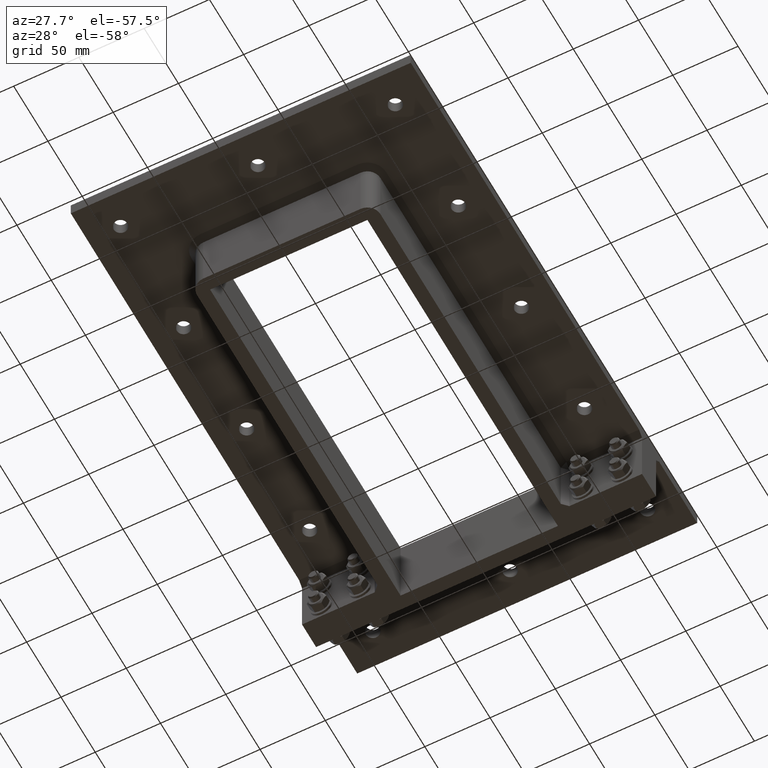
[diagram: clean part render]
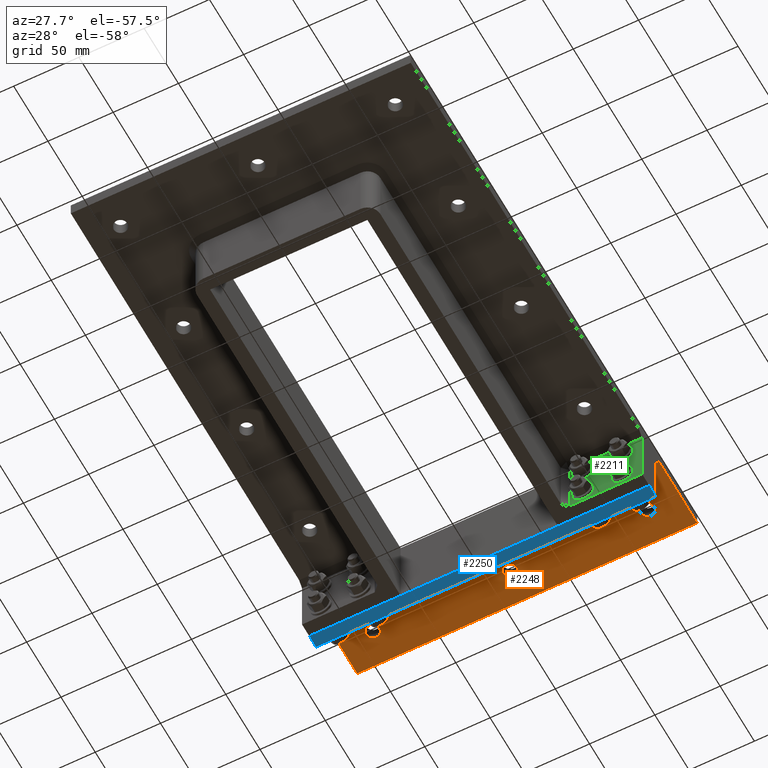
[diagram: same view with three faces highlighted in distinct colors, each labeled with its STEP entity id]
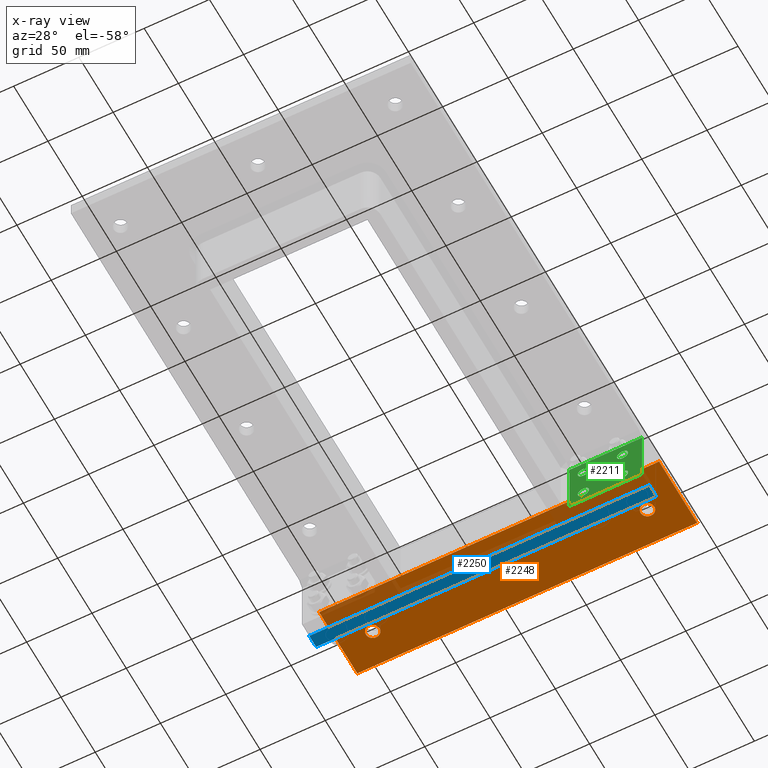
[diagram: x-ray of the same camera — body ghosted, the three highlighted faces saturated]
A machine part, auxiliary view with three faces highlighted in distinct colors.
The next image is the same camera in x-ray (body ghosted, the three faces saturated) — at least one of them is partly hidden behind the body in this view.
Their STEP definitions:

[orange] entity #2248 — the highlighted planar face has unit normal (0, 0, 1).
#217=FACE_BOUND('',#590,.T.);
#218=FACE_BOUND('',#591,.T.);
#219=FACE_BOUND('',#592,.T.);
#309=CIRCLE('',#2602,5.25);
#310=CIRCLE('',#2603,5.25);
#311=CIRCLE('',#2604,5.25);
#422=FACE_OUTER_BOUND('',#589,.T.);
#589=EDGE_LOOP('',(#1832,#1833,#1834,#1835));
#590=EDGE_LOOP('',(#1836));
#591=EDGE_LOOP('',(#1837));
#592=EDGE_LOOP('',(#1838));
#771=LINE('',#3656,#945);
#787=LINE('',#3728,#961);
#791=LINE('',#3735,#965);
#792=LINE('',#3736,#966);
#945=VECTOR('',#2994,10.);
#961=VECTOR('',#3070,10.);
#965=VECTOR('',#3076,10.);
#966=VECTOR('',#3077,10.);
#1112=VERTEX_POINT('',#3649);
#1115=VERTEX_POINT('',#3654);
#1141=VERTEX_POINT('',#3727);
#1143=VERTEX_POINT('',#3734);
#1144=VERTEX_POINT('',#3737);
#1145=VERTEX_POINT('',#3739);
#1146=VERTEX_POINT('',#3741);
#1352=EDGE_CURVE('',#1115,#1112,#771,.T.);
#1387=EDGE_CURVE('',#1141,#1112,#787,.T.);
#1391=EDGE_CURVE('',#1115,#1143,#791,.T.);
#1392=EDGE_CURVE('',#1143,#1141,#792,.T.);
#1393=EDGE_CURVE('',#1144,#1144,#309,.T.);
#1394=EDGE_CURVE('',#1145,#1145,#310,.T.);
#1395=EDGE_CURVE('',#1146,#1146,#311,.T.);
#1832=ORIENTED_EDGE('',*,*,#1352,.F.);
#1833=ORIENTED_EDGE('',*,*,#1391,.T.);
#1834=ORIENTED_EDGE('',*,*,#1392,.T.);
#1835=ORIENTED_EDGE('',*,*,#1387,.T.);
#1836=ORIENTED_EDGE('',*,*,#1393,.T.);
#1837=ORIENTED_EDGE('',*,*,#1394,.T.);
#1838=ORIENTED_EDGE('',*,*,#1395,.T.);
#2153=PLANE('',#2601);
#2248=ADVANCED_FACE('',(#422,#217,#218,#219),#2153,.F.);
#2601=AXIS2_PLACEMENT_3D('',#3733,#3074,#3075);
#2602=AXIS2_PLACEMENT_3D('',#3738,#3078,#3079);
#2603=AXIS2_PLACEMENT_3D('',#3740,#3080,#3081);
#2604=AXIS2_PLACEMENT_3D('',#3742,#3082,#3083);
#2994=DIRECTION('',(1.,1.47415505344419E-16,0.));
#3070=DIRECTION('',(1.27489725315807E-16,-1.,0.));
#3074=DIRECTION('center_axis',(0.,0.,1.));
#3075=DIRECTION('ref_axis',(1.,0.,0.));
#3076=DIRECTION('',(-2.54979450631615E-16,1.,0.));
#3077=DIRECTION('',(1.,2.72761126971248E-16,0.));
#3078=DIRECTION('center_axis',(0.,0.,1.));
#3079=DIRECTION('ref_axis',(1.,0.,0.));
#3080=DIRECTION('center_axis',(0.,0.,1.));
#3081=DIRECTION('ref_axis',(1.,0.,0.));
#3082=DIRECTION('center_axis',(0.,0.,1.));
#3083=DIRECTION('ref_axis',(1.,0.,0.));
#3649=CARTESIAN_POINT('',(130.25,153.3,-10.));
#3654=CARTESIAN_POINT('',(-130.25,153.3,-10.));
#3656=CARTESIAN_POINT('',(-30.1249999999999,153.3,-10.));
#3727=CARTESIAN_POINT('',(130.25,209.,-10.));
#3728=CARTESIAN_POINT('',(130.25,-209.,-10.));
#3733=CARTESIAN_POINT('Origin',(2.48689957516035E-13,0.,-10.));
#3734=CARTESIAN_POINT('',(-130.25,209.,-10.));
#3735=CARTESIAN_POINT('',(-130.25,209.,-10.));
#3736=CARTESIAN_POINT('',(130.25,209.,-10.));
#3737=CARTESIAN_POINT('',(-110.5,184.,-10.));
#3738=CARTESIAN_POINT('Origin',(-105.25,184.,-10.));
#3739=CARTESIAN_POINT('',(100.,184.,-10.));
#3740=CARTESIAN_POINT('Origin',(105.25,184.,-10.));
#3741=CARTESIAN_POINT('',(-5.24999999999975,184.,-10.));
#3742=CARTESIAN_POINT('Origin',(2.48689957516035E-13,184.,-10.));

[blue] entity #2250 — the highlighted planar face has unit normal (0, 0, 1).
#424=FACE_OUTER_BOUND('',#594,.T.);
#594=EDGE_LOOP('',(#1846,#1847,#1848,#1849));
#773=LINE('',#3661,#947);
#790=LINE('',#3732,#964);
#794=LINE('',#3746,#968);
#796=LINE('',#3749,#970);
#947=VECTOR('',#2998,10.);
#964=VECTOR('',#3073,10.);
#968=VECTOR('',#3087,10.);
#970=VECTOR('',#3091,10.);
#1116=VERTEX_POINT('',#3658);
#1117=VERTEX_POINT('',#3660);
#1142=VERTEX_POINT('',#3730);
#1147=VERTEX_POINT('',#3745);
#1354=EDGE_CURVE('',#1117,#1116,#773,.T.);
#1390=EDGE_CURVE('',#1116,#1142,#790,.T.);
#1397=EDGE_CURVE('',#1147,#1117,#794,.T.);
#1399=EDGE_CURVE('',#1142,#1147,#796,.T.);
#1846=ORIENTED_EDGE('',*,*,#1399,.T.);
#1847=ORIENTED_EDGE('',*,*,#1397,.T.);
#1848=ORIENTED_EDGE('',*,*,#1354,.T.);
#1849=ORIENTED_EDGE('',*,*,#1390,.T.);
#2155=PLANE('',#2606);
#2250=ADVANCED_FACE('',(#424),#2155,.F.);
#2606=AXIS2_PLACEMENT_3D('',#3748,#3089,#3090);
#2998=DIRECTION('',(1.,1.36380563485624E-16,0.));
#3073=DIRECTION('',(0.,-1.,0.));
#3087=DIRECTION('',(0.,1.,0.));
#3089=DIRECTION('center_axis',(0.,0.,1.));
#3090=DIRECTION('ref_axis',(1.,0.,0.));
#3091=DIRECTION('',(-1.,0.,0.));
#3658=CARTESIAN_POINT('',(130.25,149.,-60.));
#3660=CARTESIAN_POINT('',(-130.25,149.,-60.));
#3661=CARTESIAN_POINT('',(-130.25,149.,-60.));
#3730=CARTESIAN_POINT('',(130.25,139.,-60.));
#3732=CARTESIAN_POINT('',(130.25,149.,-60.));
#3745=CARTESIAN_POINT('',(-130.25,139.,-60.));
#3746=CARTESIAN_POINT('',(-130.25,139.,-60.));
#3748=CARTESIAN_POINT('Origin',(0.,4.44089209850063E-14,-60.));
#3749=CARTESIAN_POINT('',(130.25,139.,-60.));

[green] entity #2211 — the highlighted planar face has unit normal (0, -1, 0).
#185=FACE_BOUND('',#521,.T.);
#186=FACE_BOUND('',#522,.T.);
#187=FACE_BOUND('',#523,.T.);
#188=FACE_BOUND('',#524,.T.);
#270=CIRCLE('',#2519,4.25000000000005);
#272=CIRCLE('',#2522,4.25000000000005);
#274=CIRCLE('',#2525,4.25000000000005);
#276=CIRCLE('',#2528,4.25000000000005);
#385=FACE_OUTER_BOUND('',#520,.T.);
#520=EDGE_LOOP('',(#1627,#1628,#1629,#1630));
#521=EDGE_LOOP('',(#1631));
#522=EDGE_LOOP('',(#1632));
#523=EDGE_LOOP('',(#1633));
#524=EDGE_LOOP('',(#1634));
#709=LINE('',#3458,#883);
#713=LINE('',#3465,#887);
#727=LINE('',#3544,#901);
#728=LINE('',#3545,#902);
#883=VECTOR('',#2784,10.);
#887=VECTOR('',#2790,10.);
#901=VECTOR('',#2876,10.);
#902=VECTOR('',#2877,10.);
#1042=VERTEX_POINT('',#3422);
#1053=VERTEX_POINT('',#3456);
#1054=VERTEX_POINT('',#3461);
#1075=VERTEX_POINT('',#3513);
#1077=VERTEX_POINT('',#3519);
#1079=VERTEX_POINT('',#3525);
#1081=VERTEX_POINT('',#3531);
#1084=VERTEX_POINT('',#3543);
#1254=EDGE_CURVE('',#1053,#1042,#709,.T.);
#1258=EDGE_CURVE('',#1042,#1054,#713,.T.);
#1283=EDGE_CURVE('',#1075,#1075,#270,.T.);
#1286=EDGE_CURVE('',#1077,#1077,#272,.T.);
#1289=EDGE_CURVE('',#1079,#1079,#274,.T.);
#1292=EDGE_CURVE('',#1081,#1081,#276,.T.);
#1297=EDGE_CURVE('',#1084,#1053,#727,.T.);
#1298=EDGE_CURVE('',#1054,#1084,#728,.T.);
#1627=ORIENTED_EDGE('',*,*,#1254,.F.);
#1628=ORIENTED_EDGE('',*,*,#1297,.F.);
#1629=ORIENTED_EDGE('',*,*,#1298,.F.);
#1630=ORIENTED_EDGE('',*,*,#1258,.F.);
#1631=ORIENTED_EDGE('',*,*,#1283,.T.);
#1632=ORIENTED_EDGE('',*,*,#1286,.T.);
#1633=ORIENTED_EDGE('',*,*,#1289,.T.);
#1634=ORIENTED_EDGE('',*,*,#1292,.T.);
#2135=PLANE('',#2533);
#2211=ADVANCED_FACE('',(#385,#185,#186,#187,#188),#2135,.T.);
#2519=AXIS2_PLACEMENT_3D('',#3515,#2841,#2842);
#2522=AXIS2_PLACEMENT_3D('',#3521,#2848,#2849);
#2525=AXIS2_PLACEMENT_3D('',#3527,#2855,#2856);
#2528=AXIS2_PLACEMENT_3D('',#3533,#2862,#2863);
#2533=AXIS2_PLACEMENT_3D('',#3542,#2874,#2875);
#2784=DIRECTION('',(0.,0.,1.));
#2790=DIRECTION('',(1.,2.53765262771464E-16,0.));
#2841=DIRECTION('center_axis',(-2.53765262771464E-16,1.,0.));
#2842=DIRECTION('ref_axis',(-1.,0.,0.));
#2848=DIRECTION('center_axis',(-2.53765262771464E-16,1.,0.));
#2849=DIRECTION('ref_axis',(-1.,0.,0.));
#2855=DIRECTION('center_axis',(-2.53765262771464E-16,1.,0.));
#2856=DIRECTION('ref_axis',(-1.,0.,0.));
#2862=DIRECTION('center_axis',(-2.53765262771464E-16,1.,0.));
#2863=DIRECTION('ref_axis',(-1.,0.,0.));
#2874=DIRECTION('center_axis',(2.53765262771464E-16,-1.,0.));
#2875=DIRECTION('ref_axis',(-1.,-2.53765262771464E-16,0.));
#2876=DIRECTION('',(-1.,-2.53765262771464E-16,0.));
#2877=DIRECTION('',(0.,0.,-1.));
#3422=CARTESIAN_POINT('',(74.55,128.5,-14.3));
#3456=CARTESIAN_POINT('',(74.55,128.5,-60.));
#3458=CARTESIAN_POINT('',(74.55,128.5,0.));
#3461=CARTESIAN_POINT('',(130.25,128.5,-14.3));
#3465=CARTESIAN_POINT('',(65.1249999999999,128.5,-14.3));
#3513=CARTESIAN_POINT('',(119.5,128.5,-50.));
#3515=CARTESIAN_POINT('Origin',(115.25,128.5,-50.));
#3519=CARTESIAN_POINT('',(89.5,128.5,-25.));
#3521=CARTESIAN_POINT('Origin',(85.25,128.5,-25.));
#3525=CARTESIAN_POINT('',(119.5,128.5,-25.));
#3527=CARTESIAN_POINT('Origin',(115.25,128.5,-25.));
#3531=CARTESIAN_POINT('',(89.5000000000001,128.5,-50.));
#3533=CARTESIAN_POINT('Origin',(85.2500000000001,128.5,-50.));
#3542=CARTESIAN_POINT('Origin',(130.25,128.5,0.));
#3543=CARTESIAN_POINT('',(130.25,128.5,-60.));
#3544=CARTESIAN_POINT('',(60.25,128.5,-60.));
#3545=CARTESIAN_POINT('',(130.25,128.5,0.));